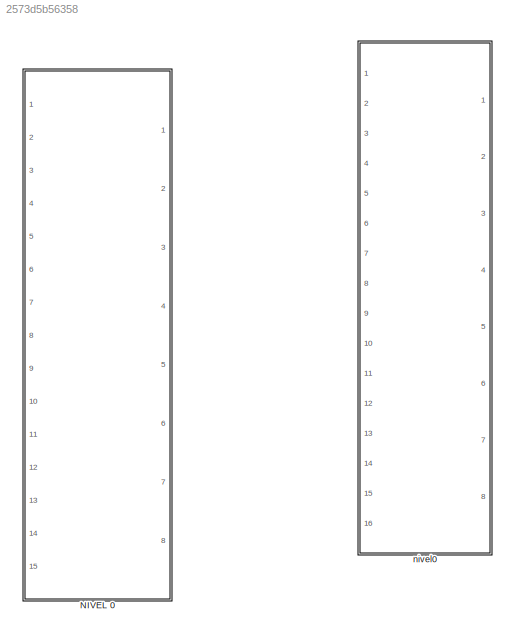
MODEL slx_2573d5b56358
KIND model
CONFIG AbsTol = auto
CONFIG EnableMultiTasking = off
CONFIG FixedStep = auto
CONFIG MaxStep = auto
CONFIG MinStep = auto
CONFIG RelTol = 1e-3
CONFIG SampleTimeConstraint = Unconstrained
CONFIG SolverName = VariableStepAuto
CONFIG StartTime = 0.0
CONFIG StopTime = 10.0
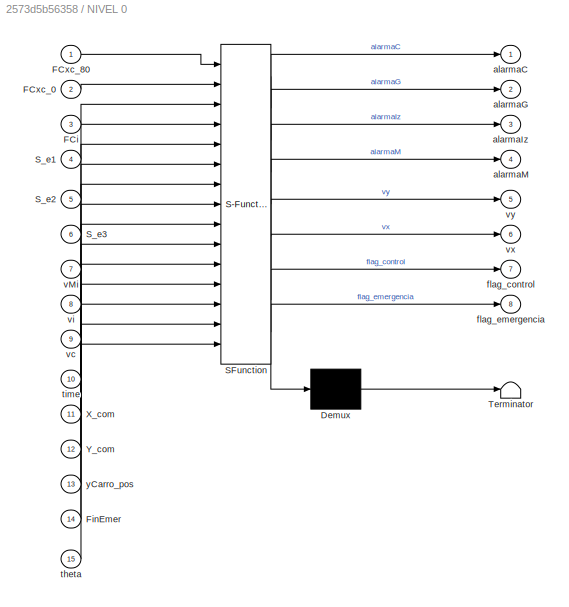
BLOCK [SubSystem] NIVEL 0
  ErrorFcn = Stateflow.Translate.translate
  PermitHierarchicalResolution = ExplicitOnly
  PortSchema = {"entries":[{"content":{"sides":[{"content":{"connectorIds":["In1","In2","In3","In4","In5","In6","In7","In8","In9","In11","In12","In13","In14","In15","In10"]},"type":"ConnectorPlacement.EquallySpacedRectSide","uuid":"257bd8b2-e50d-4f94-a780-554a728b2489"},{"content":{"connectorIds":["Out1","Out2","Out3","Out4","Out5","Out6","Out7","Out8"],"side":"RIGHT"},"type":"ConnectorPlacement.EquallySpacedRec...<+523ch>
  Ports = [15, 8]
  RequestExecContextInheritance = off
  SFBlockType = Chart
  TreatAsAtomicUnit = on
BLOCK [Demux] NIVEL 0/ Demux 
  Outputs = 1
  Ports = [1, 1]
BLOCK [S-Function] NIVEL 0/ SFunction 
  EnableBusSupport = on
  FunctionName = sf_sfun
  PortCounts = [15 9]
  Ports = [15, 9]
  SFcnIsStateOwnerBlock = off
  SFunctionDeploymentMode = off
  Tag = Stateflow S-Function 5
BLOCK [Terminator] NIVEL 0/ Terminator 
BLOCK [Inport] NIVEL 0/FCi
  Port = 3
BLOCK [Inport] NIVEL 0/FCxc_0
  Port = 2
BLOCK [Inport] NIVEL 0/FCxc_80
BLOCK [Inport] NIVEL 0/FinEmer
  Port = 14
BLOCK [Inport] NIVEL 0/S_e1
  Port = 4
BLOCK [Inport] NIVEL 0/S_e2
  Port = 5
BLOCK [Inport] NIVEL 0/S_e3
  Port = 6
BLOCK [Inport] NIVEL 0/X_com
  Port = 11
BLOCK [Inport] NIVEL 0/Y_com
  Port = 12
BLOCK [Outport] NIVEL 0/alarmaC
BLOCK [Outport] NIVEL 0/alarmaG
  Port = 2
BLOCK [Outport] NIVEL 0/alarmaIz
  Port = 3
BLOCK [Outport] NIVEL 0/alarmaM
  Port = 4
BLOCK [Outport] NIVEL 0/flag_control
  Port = 7
BLOCK [Outport] NIVEL 0/flag_emergencia
  Port = 8
BLOCK [Inport] NIVEL 0/theta
  Port = 15
BLOCK [Inport] NIVEL 0/time
  Port = 10
BLOCK [Inport] NIVEL 0/vMi
  Port = 7
BLOCK [Inport] NIVEL 0/vc
  Port = 9
BLOCK [Inport] NIVEL 0/vi
  Port = 8
BLOCK [Outport] NIVEL 0/vx
  Port = 6
BLOCK [Outport] NIVEL 0/vy
  Port = 5
BLOCK [Inport] NIVEL 0/yCarro_pos
  Port = 13
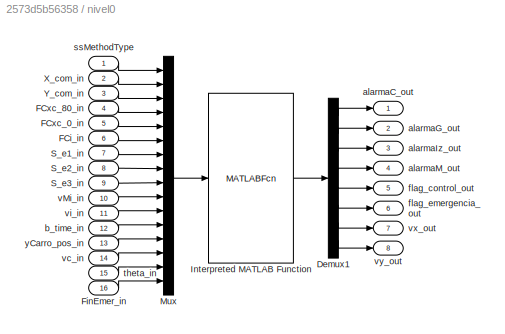
BLOCK [SubSystem] nivel0
  Ports = [16, 8]
  RequestExecContextInheritance = off
  SystemSampleTime = 0.02
  TreatAsAtomicUnit = on
BLOCK [Demux] nivel0/Demux1
  Outputs = 8
  Ports = [1, 8]
BLOCK [Inport] nivel0/FCi_in
  NameLocation = left
  Port = 6
BLOCK [Inport] nivel0/FCxc_0_in
  NameLocation = left
  Port = 5
BLOCK [Inport] nivel0/FCxc_80_in
  NameLocation = left
  Port = 4
BLOCK [Inport] nivel0/FinEmer_in
  NameLocation = left
  Port = 16
BLOCK [MATLABFcn] nivel0/Interpreted MATLAB Function
  MATLABFcn = Nivel0
  Output1D = off
  OutputDimensions = 8
  Ports = [1, 1]
BLOCK [Mux] nivel0/Mux
  DisplayOption = bar
  Inputs = 16
  Ports = [16, 1]
BLOCK [Inport] nivel0/S_e1_in
  NameLocation = left
  Port = 7
BLOCK [Inport] nivel0/S_e2_in
  NameLocation = left
  Port = 8
BLOCK [Inport] nivel0/S_e3_in
  NameLocation = left
  Port = 9
BLOCK [Inport] nivel0/X_com_in
  NameLocation = left
  Port = 2
BLOCK [Inport] nivel0/Y_com_in
  NameLocation = left
  Port = 3
BLOCK [Outport] nivel0/alarmaC_out
  NameLocation = right
BLOCK [Outport] nivel0/alarmaG_out
  NameLocation = right
  Port = 2
BLOCK [Outport] nivel0/alarmaIz_out
  NameLocation = right
  Port = 3
BLOCK [Outport] nivel0/alarmaM_out
  NameLocation = right
  Port = 4
BLOCK [Inport] nivel0/b_time_in
  NameLocation = left
  Port = 12
BLOCK [Outport] nivel0/flag_control_out
  NameLocation = right
  Port = 5
BLOCK [Outport] nivel0/flag_emergencia_out
  NameLocation = right
  Port = 6
BLOCK [Inport] nivel0/ssMethodType
  NameLocation = left
BLOCK [Inport] nivel0/theta_in
  NameLocation = left
  Port = 15
BLOCK [Inport] nivel0/vMi_in
  NameLocation = left
  Port = 10
BLOCK [Inport] nivel0/vc_in
  NameLocation = left
  Port = 14
BLOCK [Inport] nivel0/vi_in
  NameLocation = left
  Port = 11
BLOCK [Outport] nivel0/vx_out
  NameLocation = right
  Port = 7
BLOCK [Outport] nivel0/vy_out
  NameLocation = right
  Port = 8
BLOCK [Inport] nivel0/yCarro_pos_in
  NameLocation = left
  Port = 13
LINE nivel0/Demux1:1 -> nivel0/alarmaC_out:1
LINE nivel0/Demux1:2 -> nivel0/alarmaG_out:1
LINE nivel0/Demux1:3 -> nivel0/alarmaIz_out:1
LINE nivel0/Demux1:4 -> nivel0/alarmaM_out:1
LINE nivel0/Demux1:5 -> nivel0/flag_control_out:1
LINE nivel0/Demux1:6 -> nivel0/flag_emergencia_out:1
LINE nivel0/Demux1:7 -> nivel0/vx_out:1
LINE nivel0/Demux1:8 -> nivel0/vy_out:1
LINE nivel0/FCi_in:1 -> nivel0/Mux:6
LINE nivel0/FCxc_0_in:1 -> nivel0/Mux:5
LINE nivel0/FCxc_80_in:1 -> nivel0/Mux:4
LINE nivel0/FinEmer_in:1 -> nivel0/Mux:16
LINE nivel0/Interpreted MATLAB Function:1 -> nivel0/Demux1:1
LINE nivel0/Mux:1 -> nivel0/Interpreted MATLAB Function:1
LINE nivel0/S_e1_in:1 -> nivel0/Mux:7
LINE nivel0/S_e2_in:1 -> nivel0/Mux:8
LINE nivel0/S_e3_in:1 -> nivel0/Mux:9
LINE nivel0/X_com_in:1 -> nivel0/Mux:2
LINE nivel0/Y_com_in:1 -> nivel0/Mux:3
LINE nivel0/b_time_in:1 -> nivel0/Mux:12
LINE nivel0/ssMethodType:1 -> nivel0/Mux:1
LINE nivel0/theta_in:1 -> nivel0/Mux:15
LINE nivel0/vMi_in:1 -> nivel0/Mux:10
LINE nivel0/vc_in:1 -> nivel0/Mux:14
LINE nivel0/vi_in:1 -> nivel0/Mux:11
LINE nivel0/yCarro_pos_in:1 -> nivel0/Mux:13
CHART NIVEL 0 states=13 transitions=11
  STATE_LABEL 'NORMAL'
  STATE_LABEL 'WATCHDOG\nen:\n alarmaM=0;\ndu:\nif(S_e1==0)\n    alarmaM=1;\nend\nif(S_e2==0)\n    alarmaM=1;\nend\nif(S_e3==0)\n    alarmaM=1;\nend'
  STATE_LABEL 'CHEQUEO_ERROR'
  STATE_LABEL 'Normal\nen:flag_emergencia=0;\nalarmaIz=0;\nalarmaC=0;\nalarmaG=0;\nflag_control=0;\n'
  STATE_LABEL 'ErrorIzaje\nen :\nalarmaIz=1;'
  STATE_LABEL 'ErrorCarro\nalarmaC=1;'
  STATE_LABEL 'ErrorGeneral\nalarmaG=1;'
  STATE_LABEL '[FCi||vMi<vi]'
  STATE_LABEL '[FCxc_80 || FCxc_0 || vc>4]'
  STATE_LABEL '[[FCxc_80 || FCxc_0 || vc>4]]'
  STATE_LABEL '[[FCi||vMi<vi]]'
  STATE_LABEL 'WATCHDOG\nen:\n alarmaM=0;\ndu:\nif(S_e1==0)\n    alarmaM=1;\nend\nif(S_e2==0)\n    alarmaM=1;\nend\nif(S_e3==0)\n    alarmaM=1;\nend'
  STATE_LABEL 'CHEQUEO_ERROR'
  STATE_LABEL 'Normal\nen:flag_emergencia=0;\nalarmaIz=0;\nalarmaC=0;\nalarmaG=0;\nflag_control=0;\n'
  STATE_LABEL 'ErrorIzaje\nen :\nalarmaIz=1;'
  STATE_LABEL 'ErrorCarro\nalarmaC=1;'
  STATE_LABEL 'ErrorGeneral\nalarmaG=1;'
  STATE_LABEL '[FCi||vMi<vi]'
  STATE_LABEL '[FCxc_80 || FCxc_0 || vc>4]'
  STATE_LABEL '[[FCxc_80 || FCxc_0 || vc>4]]'
  STATE_LABEL '[[FCi||vMi<vi]]'
  STATE_LABEL 'Normal\nen:flag_emergencia=0;\nalarmaIz=0;\nalarmaC=0;\nalarmaG=0;\nflag_control=0;\n'
  STATE_LABEL 'ErrorIzaje\nen :\nalarmaIz=1;'
  STATE_LABEL 'ErrorCarro\nalarmaC=1;'
  STATE_LABEL 'ErrorGeneral\nalarmaG=1;'
  STATE_LABEL 'EMERGENCIA'
  STATE_LABEL 'ReduVeltransicion1\nen:\nflag_control=1;\ntime_a=time;\ndelta_t=0;\nvx=vc;\nvy=vi;\ndu:\ndelta_t=time-time_a;\n[vx,vy]=Calc_v1(delta_t,vx,vy)\ntime_a=time;\nex:\nvx = 0\nvy = 0'
  STATE_LABEL 'EstadoManual\nen :\ntime_a=time;\nvx_a=0;\nvy_a=0;\ndelta_t=0;\nflag_emergencia=1;\ndu :\ndelta_t=time-time_a;\n[vx,vy]=Calc_v(delta_t,vx_a,vy_a,X_com,Y_com);\ntime_a=time;\nvx_a=vx;\nvy_a=vy;'
  STATE_LABEL 'Apagar_alarm\nen:\nalarmaIz=0;\nalarmaC=0;\nalarmaG=0;\nalarmaM=0'
  STATE_LABEL '[abs(vx)<0.1 && abs(vy)<0.01 && theta<0.05]'
  STATE_LABEL '[FinEmer]'
  STATE_LABEL 'ReduVeltransicion1\nen:\nflag_control=1;\ntime_a=time;\ndelta_t=0;\nvx=vc;\nvy=vi;\ndu:\ndelta_t=time-time_a;\n[vx,vy]=Calc_v1(delta_t,vx,vy)\ntime_a=time;\nex:\nvx = 0\nvy = 0'
  STATE_LABEL 'EstadoManual\nen :\ntime_a=time;\nvx_a=0;\nvy_a=0;\ndelta_t=0;\nflag_emergencia=1;\ndu :\ndelta_t=time-time_a;\n[vx,vy]=Calc_v(delta_t,vx_a,vy_a,X_com,Y_com);\ntime_a=time;\nvx_a=vx;\nvy_a=vy;'
  STATE_LABEL 'Apagar_alarm\nen:\nalarmaIz=0;\nalarmaC=0;\nalarmaG=0;\nalarmaM=0'
  STATE_LABEL '[vx2,vy2]=Calc_v1(delta_t2,vx_a2,vy_a2)'
  STATE_LABEL 'SCRIPT:\nfunction [vx2,vy2]=Calc_v1(delta_t2,vx_a2,vy_a2)\nif (vx_a2 < 0 )\n    vx2=0.2*(delta_t2)+vx_a2;\nelse\n    vx2=-0.2*(delta_t2)+vx_a2;\nend\nif (vy_a2 < 0)\n    vy2=0.2*(delta_t2)+vy_a2\nelse\n    vy2=-0.2*(delta_t2)+vy_a2\nend\nend'
  STATE_LABEL '[vx1,vy1]=Calc_v(delta_t1,vx_a1,vy_a1,X_com1,Y_com1)'
  STATE_LABEL 'SCRIPT:\nfunction [vx1,vy1]=Calc_v(delta_t1,vx_a1,vy_a1,X_com1,Y_com1)\nif (X_com1 == 29 && vx_a1<4)\n    vx1=0.8*(delta_t1)+vx_a1;\nelseif (X_com1 == 28 && vx_a1 > -4 )\n    vx1=-0.8*(delta_t1)+vx_a1;\nelse\n    vx1=vx_a1;\nend\nif (Y_com1 == 31 && vy_a1<1.5)\n    vy1=0.8*(delta_t1)+vy_a1\nelseif (Y_com1==30 && vy_a1>-1.5)\n    vy1=-0.8*(delta_t1)+vy_a1\nelse\n    vy1=vy_a1\nend\n\nend'
CHART  states=0 transitions=0
